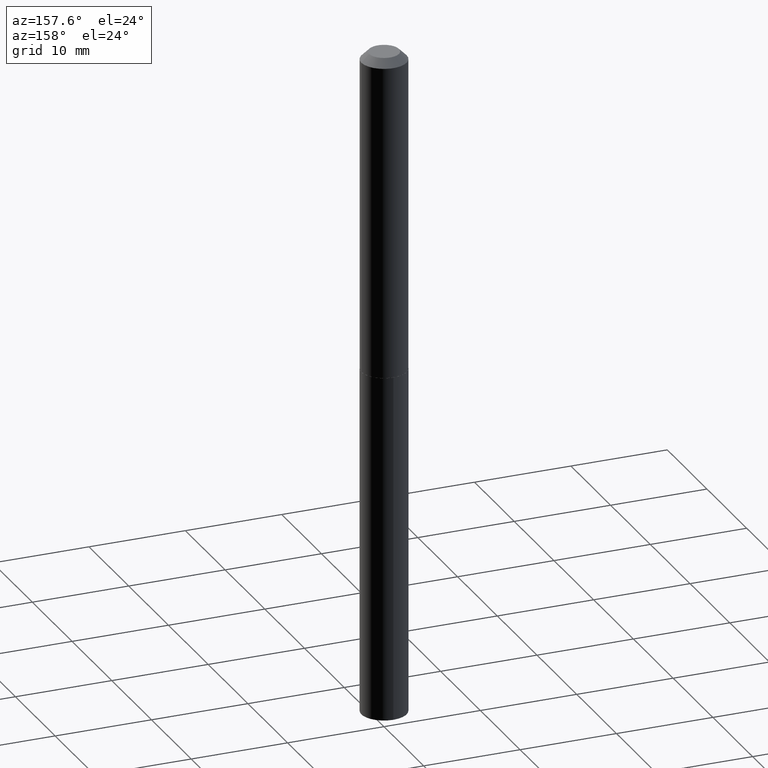
[diagram: clean part render]
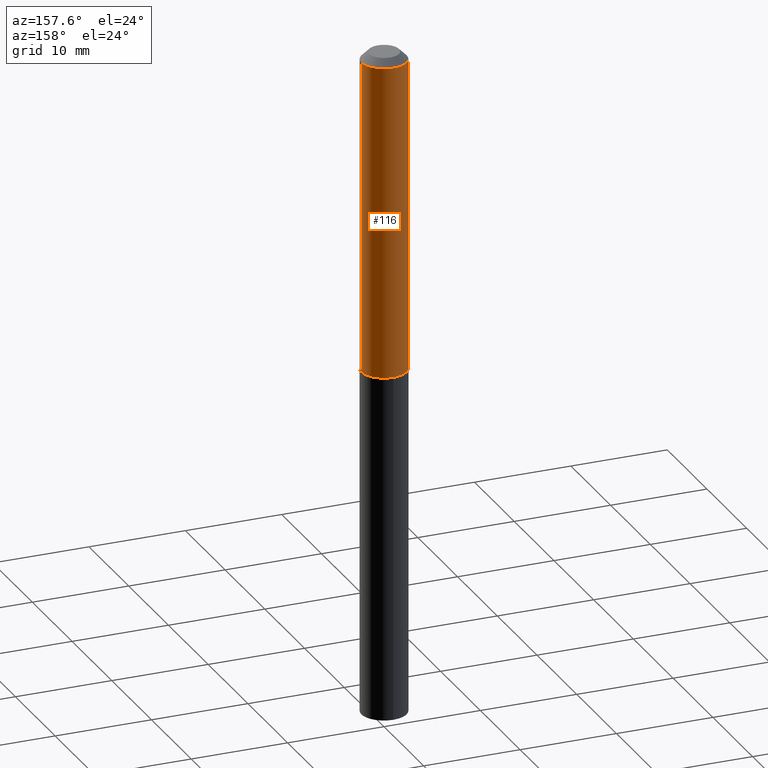
[diagram: same view with one face highlighted and labeled with its STEP entity id]
A machine part, auxiliary view. The second image highlights one B-rep face of the part: STEP entity #116.
In plain terms, the highlighted cylindrical surface (edge-blend (fillet) strip) has radius 2.3495 mm, axis along (-0, 0, 1).
Its self-contained STEP definition (entity closure, byte-faithful):
#15 = CARTESIAN_POINT ( 'NONE',  ( 0.09249999999999999889, -7.550328395248286925E-16, -0.03125000000000019429 ) ) ;
#21 = ORIENTED_EDGE ( 'NONE', *, *, #158, .F. ) ;
#48 = DIRECTION ( 'NONE',  ( -2.445468806185136597E-29, 3.491481338843145583E-15, 1.000000000000000000 ) ) ;
#64 = LINE ( 'NONE', #93, #185 ) ;
#72 = CARTESIAN_POINT ( 'NONE',  ( 0.09250000000000017930, -5.218018860901080849E-15, -1.309500000000000108 ) ) ;
#73 = CARTESIAN_POINT ( 'NONE',  ( 0.09250000000000008216, -6.459240476859802821E-16, 4.510463517611244952E-30 ) ) ;
#75 = CARTESIAN_POINT ( 'NONE',  ( 7.642090019328598283E-31, -1.091087918388489651E-16, -0.03125000000000019429 ) ) ;
#78 = AXIS2_PLACEMENT_3D ( 'NONE', #75, #48, #257 ) ;
#91 = VECTOR ( 'NONE', #208, 39.37007874015748143 ) ;
#93 = CARTESIAN_POINT ( 'NONE',  ( -0.09250000000000008216, 6.572520305780932557E-16, -4.550014958485792374E-30 ) ) ;
#100 = CARTESIAN_POINT ( 'NONE',  ( 0.000000000000000000, 0.000000000000000000, 0.000000000000000000 ) ) ;
#114 = CIRCLE ( 'NONE', #78, 0.09249999999999999889 ) ;
#116 = ADVANCED_FACE ( 'NONE', ( #163 ), #372, .T. ) ;
#122 = ORIENTED_EDGE ( 'NONE', *, *, #215, .F. ) ;
#128 = CARTESIAN_POINT ( 'NONE',  ( 3.202341401699436656E-29, -4.572094813215099285E-15, -1.309500000000000108 ) ) ;
#143 = CARTESIAN_POINT ( 'NONE',  ( -0.09250000000000017930, -3.914842782637005634E-15, -1.309500000000000108 ) ) ;
#153 = ORIENTED_EDGE ( 'NONE', *, *, #306, .T. ) ;
#158 = EDGE_CURVE ( 'NONE', #209, #363, #114, .T. ) ;
#163 = FACE_OUTER_BOUND ( 'NONE', #296, .T. ) ;
#179 = CIRCLE ( 'NONE', #299, 0.09250000000000017930 ) ;
#185 = VECTOR ( 'NONE', #386, 39.37007874015748143 ) ;
#208 = DIRECTION ( 'NONE',  ( -2.445468806185136877E-29, 3.491481338843145188E-15, 1.000000000000000000 ) ) ;
#209 = VERTEX_POINT ( 'NONE', #15 ) ;
#215 = EDGE_CURVE ( 'NONE', #384, #209, #350, .T. ) ;
#232 = DIRECTION ( 'NONE',  ( -2.445468806185136597E-29, 3.491481338843145583E-15, 1.000000000000000000 ) ) ;
#252 = DIRECTION ( 'NONE',  ( 1.000000000000000000, -6.982962677686267499E-15, 4.876176775795936353E-29 ) ) ;
#257 = DIRECTION ( 'NONE',  ( 1.000000000000000000, -6.982962677686266711E-15, 0.000000000000000000 ) ) ;
#273 = VERTEX_POINT ( 'NONE', #143 ) ;
#296 = EDGE_LOOP ( 'NONE', ( #153, #324, #21, #122 ) ) ;
#299 = AXIS2_PLACEMENT_3D ( 'NONE', #128, #340, #303 ) ;
#303 = DIRECTION ( 'NONE',  ( 1.000000000000000000, -6.982962677686272233E-15, 0.000000000000000000 ) ) ;
#306 = EDGE_CURVE ( 'NONE', #384, #273, #179, .T. ) ;
#307 = CARTESIAN_POINT ( 'NONE',  ( -0.09249999999999999889, -1.683349771948880148E-15, -0.03125000000000019429 ) ) ;
#324 = ORIENTED_EDGE ( 'NONE', *, *, #345, .T. ) ;
#340 = DIRECTION ( 'NONE',  ( -2.445468806185136597E-29, 3.491481338843145583E-15, 1.000000000000000000 ) ) ;
#342 = AXIS2_PLACEMENT_3D ( 'NONE', #100, #232, #252 ) ;
#345 = EDGE_CURVE ( 'NONE', #273, #363, #64, .T. ) ;
#350 = LINE ( 'NONE', #73, #91 ) ;
#363 = VERTEX_POINT ( 'NONE', #307 ) ;
#372 = CYLINDRICAL_SURFACE ( 'NONE', #342, 0.09250000000000008216 ) ;
#384 = VERTEX_POINT ( 'NONE', #72 ) ;
#386 = DIRECTION ( 'NONE',  ( -2.445468806185136877E-29, 3.491481338843145188E-15, 1.000000000000000000 ) ) ;